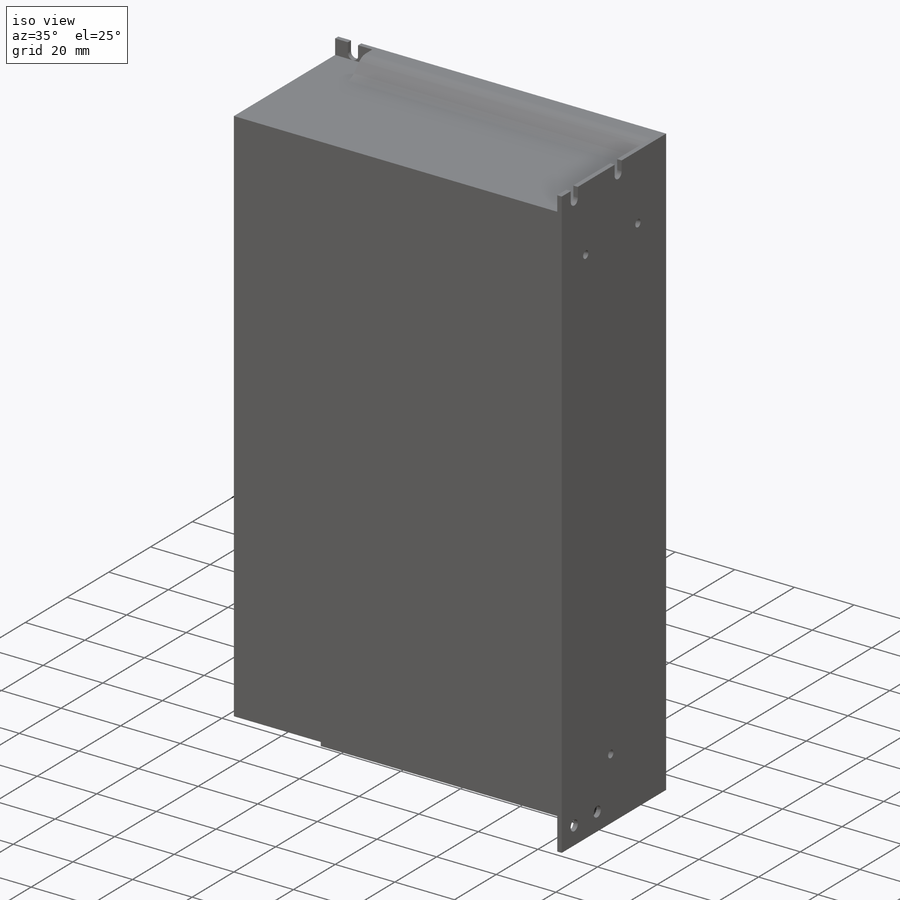
[diagram: iso view]
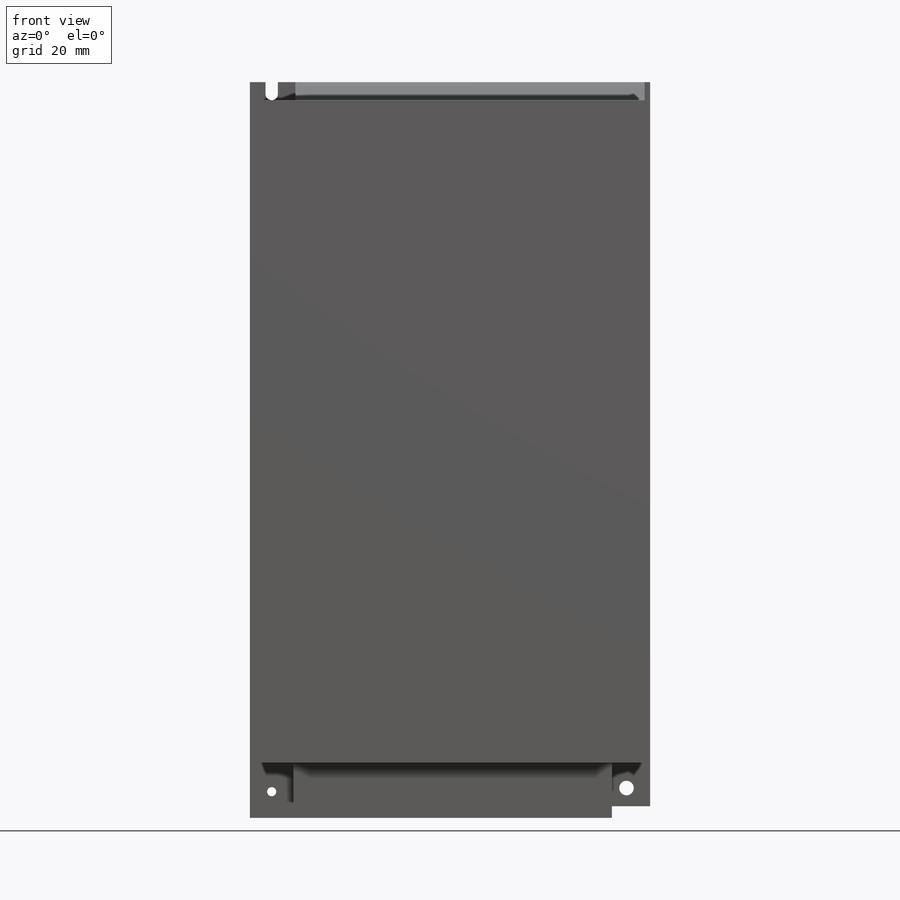
[diagram: front view]
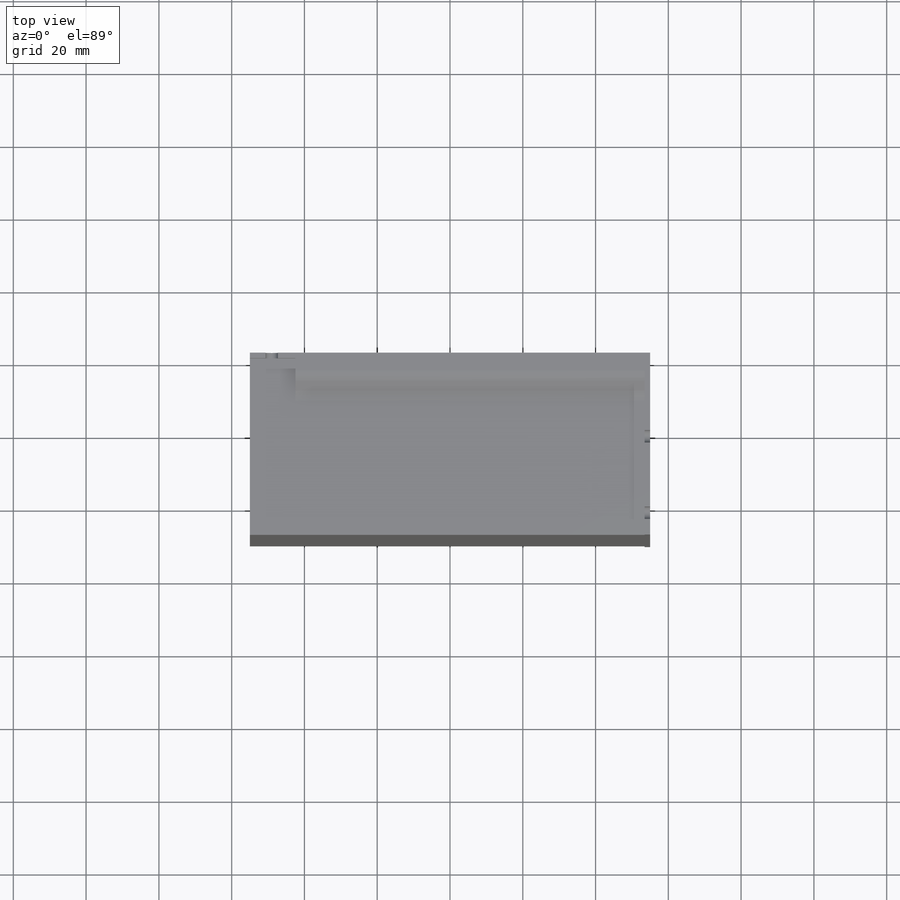
[diagram: top view]
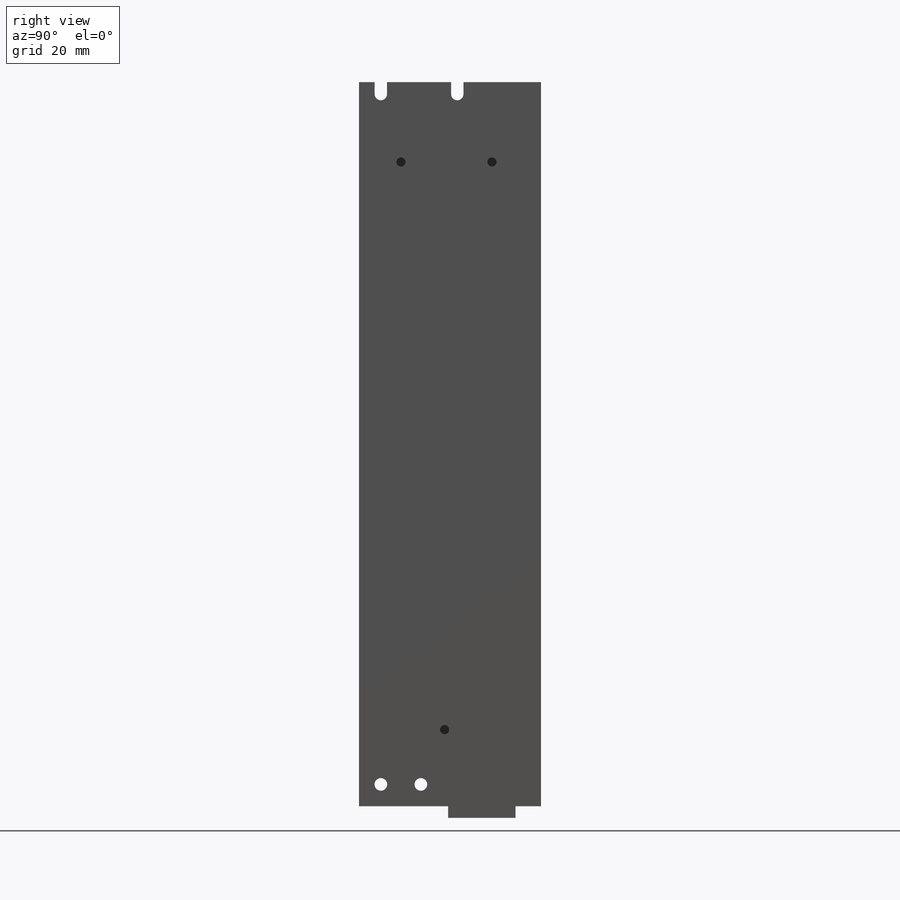
[diagram: right view]
SOLIDWORKS PART (.sldprt)
format: sldprt  version: not decoded by parser v0  size: 340,992 bytes
history: native  units: mm
features: sketch x10, cut_extrude x7, extrude x3, material x1, chamfer x1, fillet x1 (+13 scaffold rows collapsed)
feature tree (36):
  scaffold x13  (default folders/planes/origin — collapsed)
  material  "Material <not specified>"
  sketch  "Sketch1"  dims[D1=110.0mm D2=199.0mm]
  extrude  "Boss-Extrude1"  Depth=50mm
  sketch  "Sketch2"  dims[D1=1.5mm D2=12.0mm]
  cut_extrude  "Cut-Extrude1"  Depth=1.5mm
  sketch  "Sketch3"  dims[D1=9.0mm D2=12.0mm D3=24.0mm D4=9.0mm]
  extrude  "Boss-Extrude2"  [1 undecoded]
  sketch  "Sketch4"  dims[D1=11.5mm D2=1.5mm D3=1.5mm D4=12.5mm]
  cut_extrude  "Cut-Extrude2"  Depth=5mm
  sketch  "Sketch5"  dims[D1=1.7mm D2=6.0mm D3=27.0mm D4=6.0mm D5=6.0mm D6=17.0mm]
  cut_extrude  "Cut-Extrude3"  [1 undecoded]
  sketch  "Sketch6"  dims[D3=2.5mm D1=6.0mm D2=4.0mm]
  cut_extrude  "Cut-Extrude4"  [1 undecoded]
  sketch  "Sketch7"  dims[D1=7.0mm D2=2.3mm]
  extrude  "Boss-Extrude3"  Depth=3.2mm
  sketch  "Sketch8"  dims[D1=1.7mm D2=6.0mm]
  cut_extrude  "Cut-Extrude5"  [1 undecoded]
  sketch  "Sketch9"  dims[c1.D1=4.0mm c1.D2=5.0mm c1.D3=5.0mm c2.D2=5.0mm]
  cut_extrude  "Cut-Extrude6"  [1 undecoded]
  chamfer  "Chamfer1"  Distance=5mm Angle=45deg
  fillet  "Fillet1"  Radius=4mm
  sketch  "Sketch10"  dims[c1.D5=~4.910424mm c1.D6=2.5mm c1.D1=22.0mm c1.D2=25.0mm c1.D3=11.5mm c1.D4=21.0mm c2.D5=23.5mm]
  cut_extrude  "Cut-Extrude7"  Depth=5mm
decode coverage: 17 of 22 modeling features carry decoded parameters
note: ~ marks probable driven/reference dimensions
note: 5 parameter values undecoded
summary: no parameter record found for 5 features
note: suppression state not decoded; provenance and decode notes live in map.json
